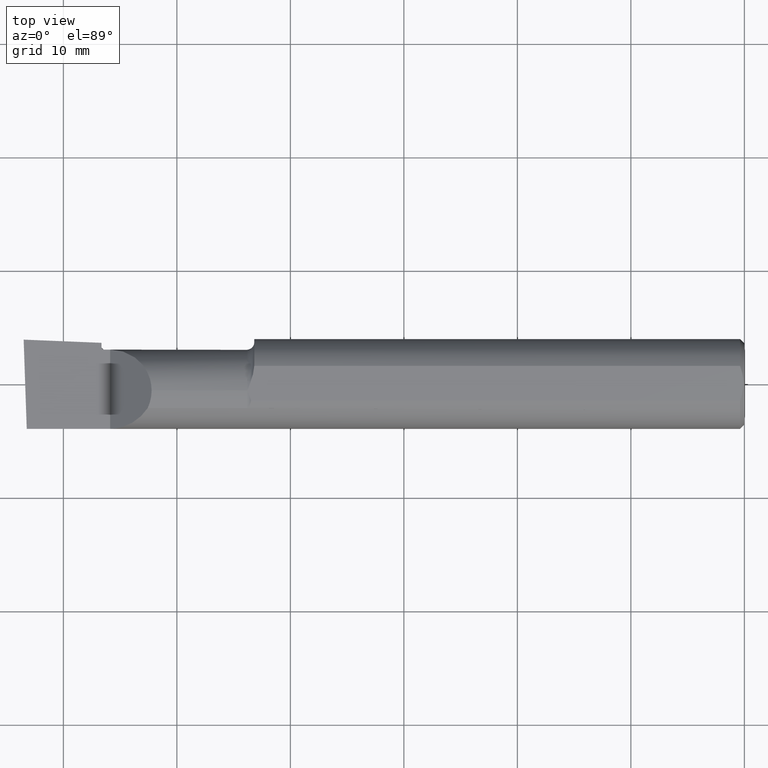
[diagram: clean part render]
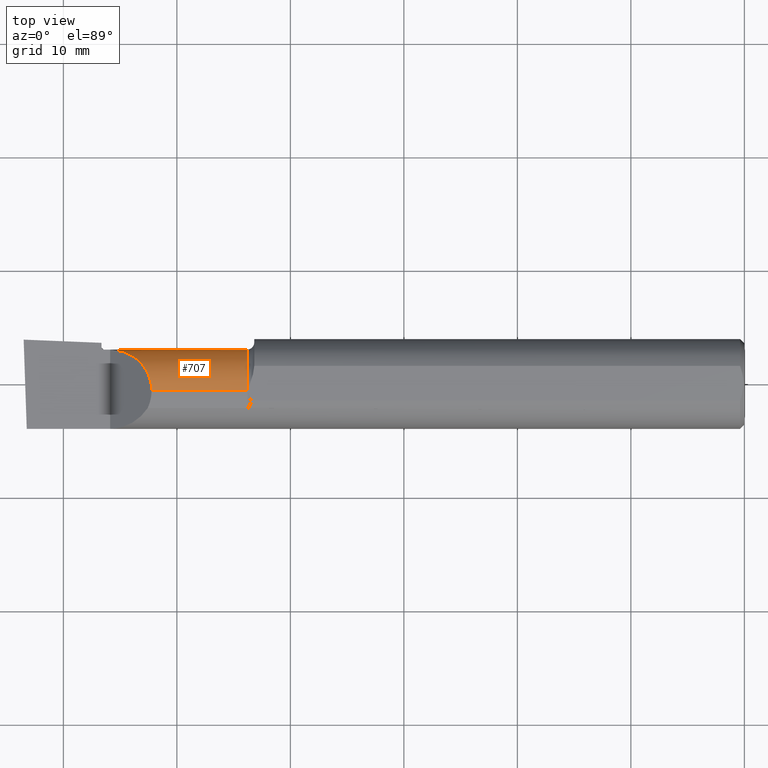
[diagram: same view with one face highlighted and labeled with its STEP entity id]
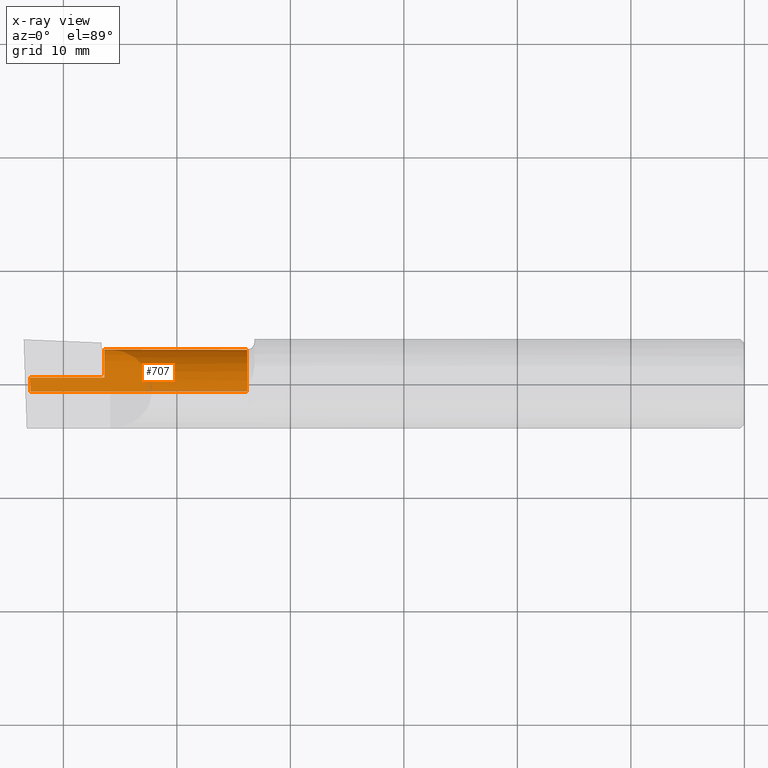
[diagram: x-ray of the same camera — body ghosted, the highlighted face saturated]
A machine part, top view. The second image highlights one B-rep face of the part: STEP entity #707.
The next image is the same camera in x-ray: the body ghosted, the highlighted face saturated — about 3% of this face is hidden behind the body in this view.
In plain terms, the highlighted cylindrical surface (partial cylindrical patch) has radius 3.6551 mm, axis along (1, -0, -0).
Its self-contained STEP definition (entity closure, byte-faithful):
#8 = CARTESIAN_POINT ( 'NONE',  ( 0.000000000000000000, -0.02500000000000002220, -0.1439000000000001389 ) ) ;
#19 = DIRECTION ( 'NONE',  ( 0.000000000000000000, 0.000000000000000000, 1.000000000000000000 ) ) ;
#21 = LINE ( 'NONE', #700, #54 ) ;
#26 = ORIENTED_EDGE ( 'NONE', *, *, #743, .T. ) ;
#30 = LINE ( 'NONE', #507, #392 ) ;
#44 = ORIENTED_EDGE ( 'NONE', *, *, #49, .F. ) ;
#49 = EDGE_CURVE ( 'NONE', #713, #398, #379, .T. ) ;
#50 = AXIS2_PLACEMENT_3D ( 'NONE', #739, #684, #281 ) ;
#54 = VECTOR ( 'NONE', #364, 39.37007874015748143 ) ;
#56 = CARTESIAN_POINT ( 'NONE',  ( 0.000000000000000000, -0.02500000000000000486, 0.1439000000000001389 ) ) ;
#62 = FACE_OUTER_BOUND ( 'NONE', #579, .T. ) ;
#66 = DIRECTION ( 'NONE',  ( 1.000000000000000000, -0.000000000000000000, -0.000000000000000000 ) ) ;
#89 = DIRECTION ( 'NONE',  ( 0.000000000000000000, 0.000000000000000000, 1.000000000000000000 ) ) ;
#107 = VECTOR ( 'NONE', #255, 39.37007874015748143 ) ;
#151 = CARTESIAN_POINT ( 'NONE',  ( -1.724999999999999867, -0.02500000000000000486, 0.000000000000000000 ) ) ;
#170 = CIRCLE ( 'NONE', #698, 0.1439000000000001389 ) ;
#183 = CARTESIAN_POINT ( 'NONE',  ( -2.476130359589496788, -0.02500000000000002220, -0.1439000000000001389 ) ) ;
#193 = ORIENTED_EDGE ( 'NONE', *, *, #336, .T. ) ;
#194 = DIRECTION ( 'NONE',  ( 1.000000000000000000, 0.000000000000000000, 0.000000000000000000 ) ) ;
#204 = CARTESIAN_POINT ( 'NONE',  ( -2.476713598110543035, -0.008170903630063742693, -0.1439000000000001389 ) ) ;
#213 = VECTOR ( 'NONE', #239, 39.37007874015748143 ) ;
#216 = CARTESIAN_POINT ( 'NONE',  ( -1.724999999999999867, -0.02500000000000000486, 0.1439000000000001389 ) ) ;
#227 = VERTEX_POINT ( 'NONE', #309 ) ;
#239 = DIRECTION ( 'NONE',  ( 1.000000000000000000, -0.000000000000000000, -0.000000000000000000 ) ) ;
#242 = EDGE_CURVE ( 'NONE', #412, #713, #21, .T. ) ;
#255 = DIRECTION ( 'NONE',  ( 1.000000000000000000, -0.000000000000000000, -0.000000000000000000 ) ) ;
#259 = CARTESIAN_POINT ( 'NONE',  ( -2.056100000000001149, -0.02500000000000000486, 0.1439000000000001389 ) ) ;
#260 = ORIENTED_EDGE ( 'NONE', *, *, #600, .T. ) ;
#261 = EDGE_CURVE ( 'NONE', #275, #227, #650, .T. ) ;
#264 = ORIENTED_EDGE ( 'NONE', *, *, #418, .T. ) ;
#271 = CARTESIAN_POINT ( 'NONE',  ( -2.115705331625488572, 0.1189000000000001445, 0.08429466837451166095 ) ) ;
#274 = CARTESIAN_POINT ( 'NONE',  ( -2.476130359589496788, -0.02500000000000002220, -0.1439000000000001389 ) ) ;
#275 = VERTEX_POINT ( 'NONE', #183 ) ;
#278 = ORIENTED_EDGE ( 'NONE', *, *, #261, .F. ) ;
#281 = DIRECTION ( 'NONE',  ( 0.000000000000000000, 0.000000000000000000, 1.000000000000000000 ) ) ;
#297 = ORIENTED_EDGE ( 'NONE', *, *, #242, .F. ) ;
#301 = CYLINDRICAL_SURFACE ( 'NONE', #493, 0.1439000000000001389 ) ;
#309 = CARTESIAN_POINT ( 'NONE',  ( -1.724999999999999867, -0.02500000000000002220, -0.1439000000000001389 ) ) ;
#315 =( BOUNDED_CURVE ( )  B_SPLINE_CURVE ( 3, ( #274, #204, #446, #509 ),
 .UNSPECIFIED., .F., .F. ) 
 B_SPLINE_CURVE_WITH_KNOTS ( ( 4, 4 ),
 ( 0.2749416817183363837, 0.6240075321171965061 ),
 .UNSPECIFIED. ) 
 CURVE ( )  GEOMETRIC_REPRESENTATION_ITEM ( )  RATIONAL_B_SPLINE_CURVE ( ( 1.000000000000000000, 0.9898718353414723836, 0.9898718353414723836, 1.000000000000000000 ) ) 
 REPRESENTATION_ITEM ( '' )  );
#326 = CARTESIAN_POINT ( 'NONE',  ( -2.478902233428061486, 0.02421669862456291358, -0.1352217681310924902 ) ) ;
#336 = EDGE_CURVE ( 'NONE', #412, #427, #413, .T. ) ;
#364 = DIRECTION ( 'NONE',  ( -1.000000000000000000, 0.000000000000000000, 0.000000000000000000 ) ) ;
#379 = CIRCLE ( 'NONE', #50, 0.1439000000000001389 ) ;
#392 = VECTOR ( 'NONE', #194, 39.37007874015748143 ) ;
#398 = VERTEX_POINT ( 'NONE', #448 ) ;
#399 = EDGE_CURVE ( 'NONE', #275, #424, #315, .T. ) ;
#412 = VERTEX_POINT ( 'NONE', #732 ) ;
#413 =( BOUNDED_CURVE ( )  B_SPLINE_CURVE ( 3, ( #611, #271, #505, #432 ),
 .UNSPECIFIED., .F., .T. ) 
 B_SPLINE_CURVE_WITH_KNOTS ( ( 4, 4 ),
 ( 4.712388980384689674, 6.283185307179586232 ),
 .UNSPECIFIED. ) 
 CURVE ( )  GEOMETRIC_REPRESENTATION_ITEM ( )  RATIONAL_B_SPLINE_CURVE ( ( 1.000000000000000000, 0.8047378541243649375, 0.8047378541243649375, 1.000000000000000000 ) ) 
 REPRESENTATION_ITEM ( '' )  );
#418 = EDGE_CURVE ( 'NONE', #433, #227, #170, .T. ) ;
#424 = VERTEX_POINT ( 'NONE', #326 ) ;
#427 = VERTEX_POINT ( 'NONE', #259 ) ;
#432 = CARTESIAN_POINT ( 'NONE',  ( -2.056100000000001149, -0.02500000000000000486, 0.1439000000000001389 ) ) ;
#433 = VERTEX_POINT ( 'NONE', #216 ) ;
#446 = CARTESIAN_POINT ( 'NONE',  ( -2.477647009804057276, 0.008402520951239047728, -0.1409776580835795934 ) ) ;
#448 = CARTESIAN_POINT ( 'NONE',  ( -2.219999999999999751, 0.02421669862456291358, -0.1352217681310924902 ) ) ;
#493 = AXIS2_PLACEMENT_3D ( 'NONE', #531, #66, #19 ) ;
#505 = CARTESIAN_POINT ( 'NONE',  ( -2.056100000000001149, 0.05929466837451168731, 0.1439000000000001112 ) ) ;
#507 = CARTESIAN_POINT ( 'NONE',  ( -2.500000000000000000, 0.02421669862456291358, -0.1352217681310924902 ) ) ;
#509 = CARTESIAN_POINT ( 'NONE',  ( -2.478902233428061486, 0.02421669862456291358, -0.1352217681310924902 ) ) ;
#531 = CARTESIAN_POINT ( 'NONE',  ( 0.000000000000000000, -0.02500000000000000486, 0.000000000000000000 ) ) ;
#579 = EDGE_LOOP ( 'NONE', ( #278, #672, #26, #44, #297, #193, #260, #264 ) ) ;
#585 = CARTESIAN_POINT ( 'NONE',  ( -2.219999999999999751, 0.1189000000000001306, 3.826894855694925850E-18 ) ) ;
#600 = EDGE_CURVE ( 'NONE', #427, #433, #628, .T. ) ;
#605 = DIRECTION ( 'NONE',  ( -1.000000000000000000, 0.000000000000000000, 0.000000000000000000 ) ) ;
#611 = CARTESIAN_POINT ( 'NONE',  ( -2.199999999999999289, 0.1189000000000001306, 3.826894855694925850E-18 ) ) ;
#628 = LINE ( 'NONE', #56, #107 ) ;
#650 = LINE ( 'NONE', #8, #213 ) ;
#672 = ORIENTED_EDGE ( 'NONE', *, *, #399, .T. ) ;
#684 = DIRECTION ( 'NONE',  ( -1.000000000000000000, 0.000000000000000000, 0.000000000000000000 ) ) ;
#698 = AXIS2_PLACEMENT_3D ( 'NONE', #151, #605, #89 ) ;
#700 = CARTESIAN_POINT ( 'NONE',  ( 0.000000000000000000, 0.1189000000000001306, 3.826894855694925850E-18 ) ) ;
#707 = ADVANCED_FACE ( 'NONE', ( #62 ), #301, .T. ) ;
#713 = VERTEX_POINT ( 'NONE', #585 ) ;
#732 = CARTESIAN_POINT ( 'NONE',  ( -2.199999999999999289, 0.1189000000000001306, 3.826894855694925850E-18 ) ) ;
#739 = CARTESIAN_POINT ( 'NONE',  ( -2.219999999999999751, -0.02500000000000000486, 0.000000000000000000 ) ) ;
#743 = EDGE_CURVE ( 'NONE', #424, #398, #30, .T. ) ;